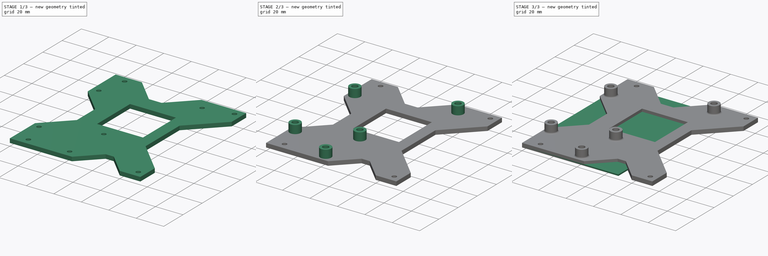
[diagram: build sequence overview — one tinted view per stage of 3, left to right]
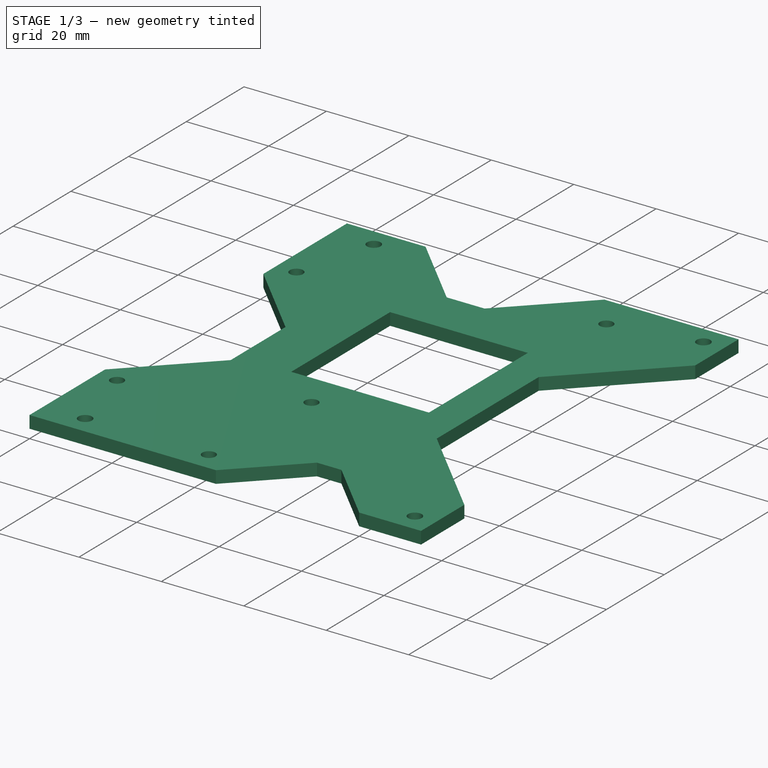
[diagram: stage 1 of 3 — iso view after this stage's code; geometry added in this stage tinted green]
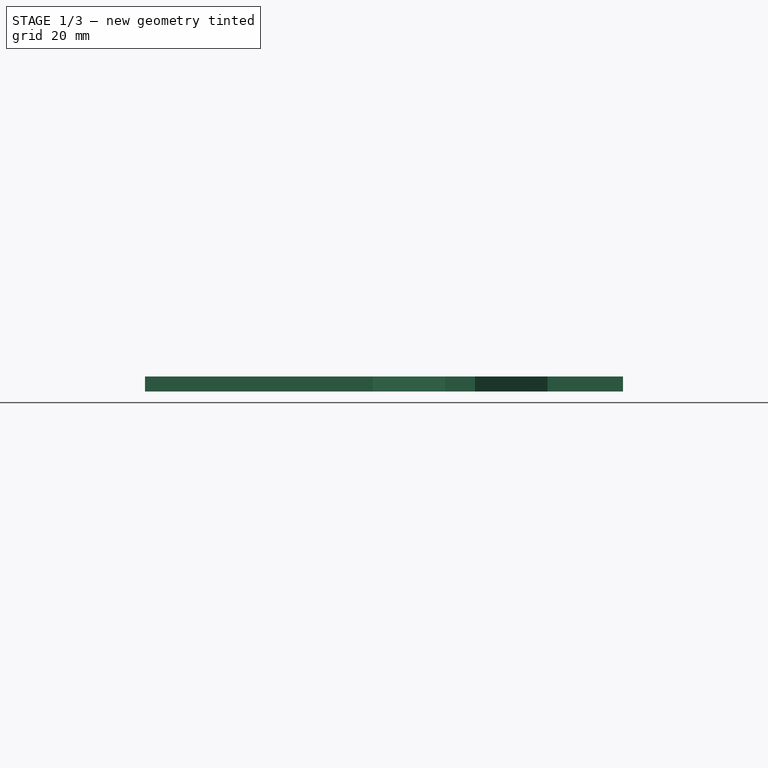
[diagram: stage 1 of 3 — front view after this stage's code; geometry added in this stage tinted green]
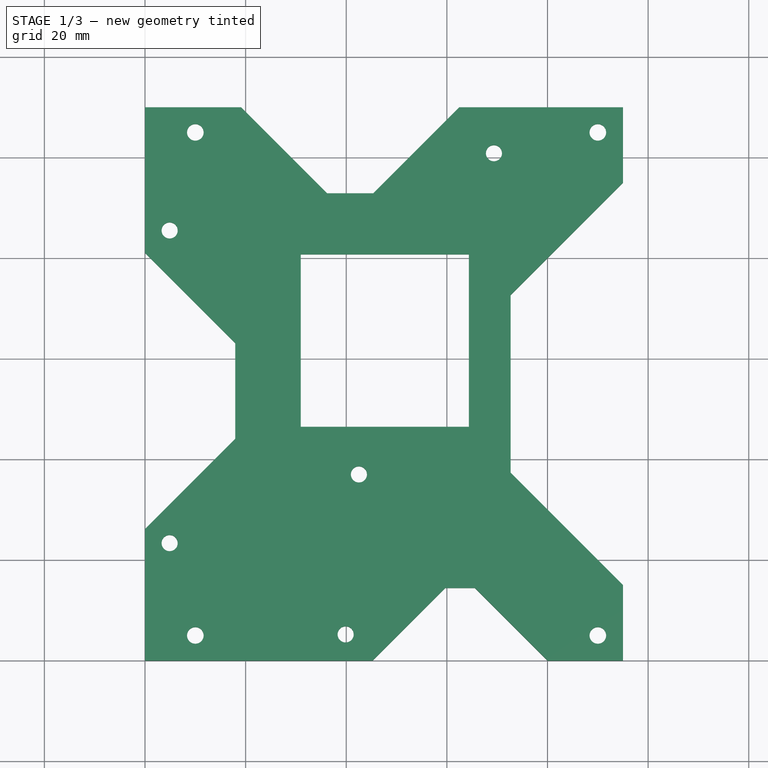
[diagram: stage 1 of 3 — top view after this stage's code; geometry added in this stage tinted green]
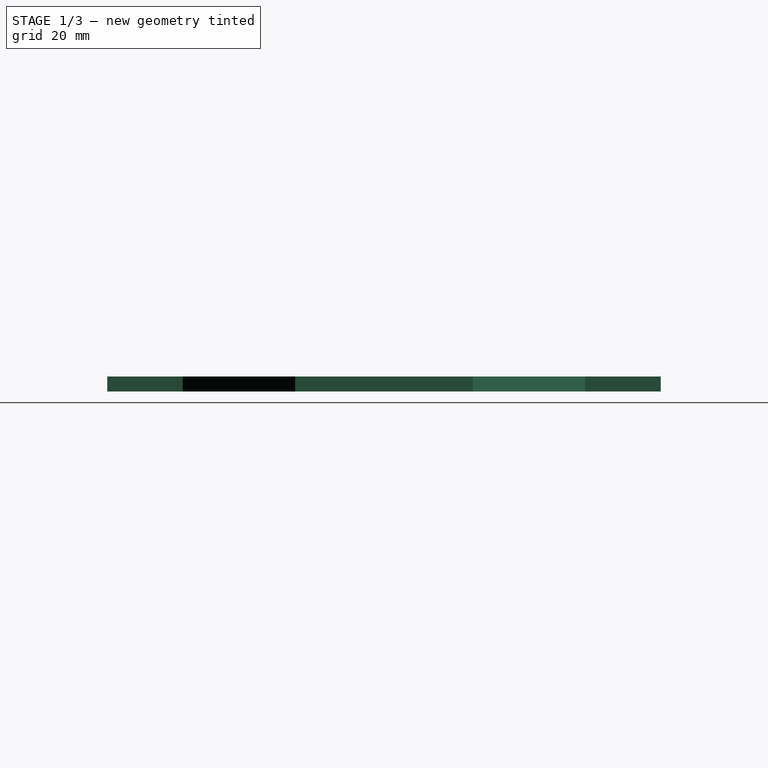
[diagram: stage 1 of 3 — right view after this stage's code; geometry added in this stage tinted green]
FCSTD DOCUMENT  (FreeCAD 0.19R24291 (Git))
Label: Mini E3 Mount
License: All rights reserved
LicenseURL: http://en.wikipedia.org/wiki/All_rights_reserved
objects: Sketcher::SketchObject×4, PartDesign::Pad×3, PartDesign::Body×2, PartDesign::Pocket×1, PartDesign::Fillet×1
note: 16 computed .brp shape members not serialized (recipe doc carries the construction recipe); baked Part::Feature solids carry a one-line shape summary decoded from their .brp

FEATURE [Sketcher::SketchObject] Sketch
  FullyConstrained = false
  MapMode = 2
  sketch-geometry (27):
    g0: LineSegment StartX=0 StartY=0 StartZ=0 EndX=45.2279 EndY=0 EndZ=0
    g1: LineSegment StartX=95 StartY=0 StartZ=0 EndX=95 EndY=15 EndZ=0
    g2: LineSegment StartX=95 StartY=110 StartZ=0 EndX=62.4625 EndY=110 EndZ=0
    g3: LineSegment StartX=0 StartY=110 StartZ=0 EndX=0 EndY=81.0263 EndZ=0
    g4: Circle CenterX=10 CenterY=105 CenterZ=0 NormalX=0 NormalY=0 NormalZ=1 AngleXU=0 Radius=1.65
    g5: Circle CenterX=90 CenterY=105 CenterZ=0 NormalX=0 NormalY=0 NormalZ=1 AngleXU=0 Radius=1.65
    g6: LineSegment StartX=10 StartY=105 StartZ=0 EndX=90 EndY=105 EndZ=0
    g7: Circle CenterX=10 CenterY=5 CenterZ=0 NormalX=0 NormalY=0 NormalZ=1 AngleXU=0 Radius=1.65
    g8: LineSegment StartX=10 StartY=105 StartZ=0 EndX=10 EndY=5 EndZ=0
    g9: Circle CenterX=90 CenterY=5 CenterZ=0 NormalX=0 NormalY=0 NormalZ=1 AngleXU=0 Radius=1.65
    g10: LineSegment StartX=10 StartY=5 StartZ=0 EndX=90 EndY=5 EndZ=0
    g11: LineSegment StartX=0 StartY=81.0263 StartZ=0 EndX=17.9327 EndY=63.0936 EndZ=0
    g12: LineSegment StartX=17.9327 StartY=63.0936 StartZ=0 EndX=17.9327 EndY=44.0976 EndZ=0
    g13: LineSegment StartX=17.9327 StartY=44.0976 StartZ=0 EndX=0 EndY=26.1649 EndZ=0
    g14: LineSegment StartX=19.0693 StartY=110 StartZ=0 EndX=36.1766 EndY=92.8927 EndZ=0
    g15: LineSegment StartX=36.1766 StartY=92.8927 StartZ=0 EndX=45.3553 EndY=92.8927 EndZ=0
    g16: LineSegment StartX=45.3553 StartY=92.8927 StartZ=0 EndX=62.4625 EndY=110 EndZ=0
    g17: LineSegment StartX=45.2279 StartY=0 StartZ=0 EndX=59.6457 EndY=14.4178 EndZ=0
    g18: LineSegment StartX=59.6457 StartY=14.4178 StartZ=0 EndX=65.5822 EndY=14.4178 EndZ=0
    g19: LineSegment StartX=65.5822 StartY=14.4178 StartZ=0 EndX=80 EndY=0 EndZ=0
    g20: LineSegment StartX=95 StartY=15 StartZ=0 EndX=72.6613 EndY=37.3387 EndZ=0
    g21: LineSegment StartX=72.6613 StartY=37.3387 StartZ=0 EndX=72.6613 EndY=72.6613 EndZ=0
    g22: LineSegment StartX=72.6613 StartY=72.6613 StartZ=0 EndX=95 EndY=95 EndZ=0
    g23: LineSegment StartX=19.0693 StartY=110 StartZ=0 EndX=0 EndY=110 EndZ=0
    g24: LineSegment StartX=95 StartY=95 StartZ=0 EndX=95 EndY=110 EndZ=0
    g25: LineSegment StartX=80 StartY=0 StartZ=0 EndX=95 EndY=0 EndZ=0
    g26: LineSegment StartX=0 StartY=26.1649 StartZ=0 EndX=0 EndY=0 EndZ=0
  constraints (64):
    c: Coincident(g25,g1)
    c: Coincident(g24,g2)
    c: Coincident(g23,g3)
    c: Coincident(g26,g0)
    c: Horizontal(g0)
    c: Horizontal(g2)
    c: Vertical(g1)
    c: Vertical(g3)
    c: Coincident(g0,g-1)
    c: DistanceX(g0,g25) = 95
    c: DistanceY(g26,g3) = 110
    c: Radius(g4) = 1.65
    c: Radius(g5) = 1.65
    c: Coincident(g4,g6)
    c: Coincident(g5,g6)
    c: Distance(g6) = 80
    c: Angle(g6) = 0
    c: Radius(g7) = 1.65
    c: Coincident(g4,g8)
    c: Coincident(g7,g8)
    c: Distance(g8) = 100
    c: Perpendicular(g8,g6)
    c: Radius(g9) = 1.65
    c: Coincident(g7,g10)
    c: Coincident(g9,g10)
    c: Equal(g6,g10)
    c: Parallel(g10,g6)
    c: DistanceY(g0,g7) = 5
    c: DistanceX(g0,g7) = 10
    c: Coincident(g11,g12)
    c: Vertical(g12)
    c: Coincident(g12,g13)
    c: Coincident(g14,g15)
    c: Horizontal(g15)
    c: Coincident(g15,g16)
    c: Coincident(g17,g18)
    c: Horizontal(g18)
    c: Coincident(g18,g19)
    c: Coincident(g20,g21)
    c: Vertical(g21)
    c: Coincident(g21,g22)
    c: Angle(g15,g14) = 2.35619
    c: Angle(g16,g15) = 2.35619
    c: Angle(g21,g22) = 2.35619
    c: Angle(g20,g21) = 2.35619
    c: Angle(g17,g18) = 2.35619
    c: Angle(g18,g19) = 2.35619
    c: Angle(g11,g12) = 2.35619
    c: Angle(g12,g13) = 2.35619
    c: DistanceX(g19,g25) = 15
    c: DistanceY(g25,g20) = 15
    c: DistanceY(g22,g24) = 15
    c: Coincident(g2,g16)
    c: Coincident(g23,g14)
    c: Tangent(g2,g23)
    c: Coincident(g1,g20)
    c: Coincident(g24,g22)
    c: Tangent(g1,g24)
    c: Coincident(g0,g17)
    c: Coincident(g25,g19)
    c: Tangent(g0,g25)
    c: Coincident(g3,g11)
    c: Coincident(g26,g13)
    c: Tangent(g3,g26)
FEATURE [Sketcher::SketchObject] Sketch001
  FullyConstrained = true
  MapMode = 5
  Support = -> [XY_Plane001]
  sketch-geometry (9):
    g0: LineSegment StartX=0 StartY=0 StartZ=0 EndX=70.25 EndY=0 EndZ=0
    g1: LineSegment StartX=70.25 StartY=0 StartZ=0 EndX=70.25 EndY=103.75 EndZ=0
    g2: LineSegment StartX=70.25 StartY=103.75 StartZ=0 EndX=0 EndY=103.75 EndZ=0
    g3: LineSegment StartX=0 StartY=103.75 StartZ=0 EndX=0 EndY=0 EndZ=0
    g4: Circle CenterX=2.895 CenterY=85.5 CenterZ=0 NormalX=0 NormalY=0 NormalZ=1 AngleXU=0 Radius=1.6
    g5: Circle CenterX=2.895 CenterY=23.35 CenterZ=0 NormalX=0 NormalY=0 NormalZ=1 AngleXU=0 Radius=1.6
    g6: Circle CenterX=40.515 CenterY=37.005 CenterZ=0 NormalX=0 NormalY=0 NormalZ=1 AngleXU=0 Radius=1.6
    g7: Circle CenterX=37.875 CenterY=5.205 CenterZ=0 NormalX=0 NormalY=0 NormalZ=1 AngleXU=0 Radius=1.6
    g8: Circle CenterX=67.355 CenterY=100.855 CenterZ=0 NormalX=0 NormalY=0 NormalZ=1 AngleXU=0 Radius=1.6
  constraints (27):
    c: Coincident(g0,g1)
    c: Coincident(g1,g2)
    c: Coincident(g2,g3)
    c: Coincident(g3,g0)
    c: Horizontal(g0)
    c: Horizontal(g2)
    c: Vertical(g1)
    c: Vertical(g3)
    c: Coincident(g0,g-1)
    c: DistanceY(g3,g3) = 103.75
    c: DistanceX(g0,g0) = 70.25
    c: Radius(g4) = 1.6
    c: Equal(g4,g5) = 1.6
    c: Equal(g4,g6) = 1.6
    c: Equal(g4,g7) = 1.6
    c: Equal(g4,g8) = 1.6
    c: DistanceY(g5,g4) = 62.15
    c: Vertical(g5,g4)
    c: DistanceX(g5,g6) = 37.62
    c: DistanceX(g5,g7) = 34.98
    c: DistanceX(g5,g8) = 64.46
    c: DistanceX(g8,g1) = 2.895
    c: DistanceY(g8,g1) = 2.895
    c: DistanceY(g7,g8) = 95.65
    c: DistanceY(g0,g5) = 23.35
    c: DistanceY(g4,g2) = 18.25
    c: DistanceY(g7,g6) = 31.8
FEATURE [PartDesign::Pad] Pad
  Direction = (1,1,1)
  Length = 3
  Length2 = 100
  Profile = -> Sketch
  Type = 0
FEATURE [Sketcher::SketchObject] Sketch004
  AttachmentOffset = pos=(2,0,0) rot=(0,0,1;0rad)
  FullyConstrained = false
  MapMode = 5
  Placement = pos=(2,0,3) rot=(0,0,1;0rad)
  Support = -> [Pad]
  sketch-geometry (9):
    g0: Circle CenterX=2.895 CenterY=85.5 CenterZ=0 NormalX=0 NormalY=0 NormalZ=1 AngleXU=0 Radius=1.6
    g1: Circle CenterX=2.895 CenterY=23.35 CenterZ=0 NormalX=0 NormalY=0 NormalZ=1 AngleXU=0 Radius=1.6
    g2: Circle CenterX=40.515 CenterY=37.005 CenterZ=0 NormalX=0 NormalY=0 NormalZ=1 AngleXU=0 Radius=1.6
    g3: Circle CenterX=37.875 CenterY=5.205 CenterZ=0 NormalX=0 NormalY=0 NormalZ=1 AngleXU=0 Radius=1.6
    g4: Circle CenterX=67.355 CenterY=100.855 CenterZ=0 NormalX=0 NormalY=0 NormalZ=1 AngleXU=0 Radius=1.6
    g5: LineSegment StartX=28.9523 StartY=80.7494 StartZ=0 EndX=62.3705 EndY=80.7494 EndZ=0
    g6: LineSegment StartX=62.3705 StartY=80.7494 StartZ=0 EndX=62.3705 EndY=46.4851 EndZ=0
    g7: LineSegment StartX=62.3705 StartY=46.4851 StartZ=0 EndX=28.9523 EndY=46.4851 EndZ=0
    g8: LineSegment StartX=28.9523 StartY=46.4851 StartZ=0 EndX=28.9523 EndY=80.7494 EndZ=0
  constraints (20):
    c: Radius(g0) = 1.6
    c: Equal(g0,g1) = 1.6
    c: Equal(g0,g2) = 1.6
    c: Equal(g0,g3) = 1.6
    c: Equal(g0,g4) = 1.6
    c: DistanceY(g1,g0) = 62.15
    c: Vertical(g1,g0)
    c: DistanceX(g1,g2) = 37.62
    c: DistanceX(g1,g3) = 34.98
    c: DistanceX(g1,g4) = 64.46
    c: DistanceY(g3,g4) = 95.65
    c: DistanceY(g3,g2) = 31.8
    c: Coincident(g5,g6)
    c: Coincident(g6,g7)
    c: Coincident(g7,g8)
    c: Coincident(g8,g5)
    c: Horizontal(g5)
    c: Horizontal(g7)
    c: Vertical(g6)
    c: Vertical(g8)
FEATURE [PartDesign::Pocket] Pocket
  BaseFeature = -> Pad
  Length = 5
  Length2 = 100
  Profile = -> Sketch004
  Type = 0
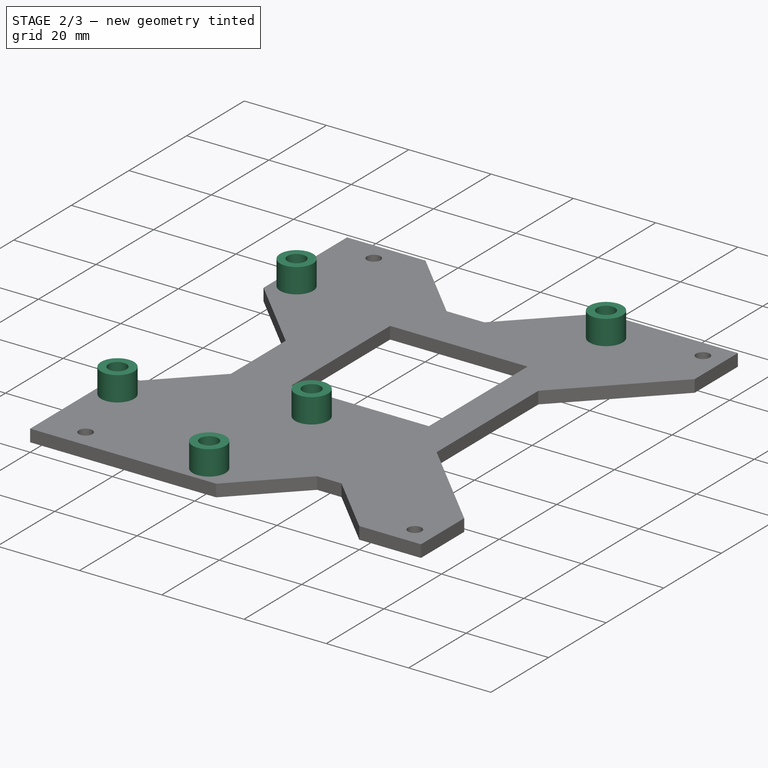
[diagram: stage 2 of 3 — iso view after this stage's code; geometry added in this stage tinted green]
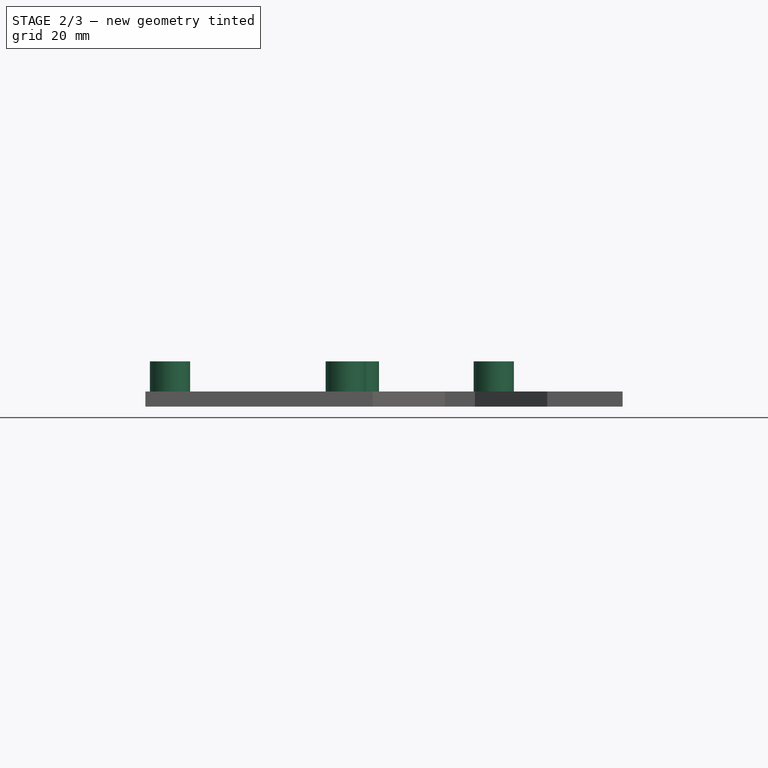
[diagram: stage 2 of 3 — front view after this stage's code; geometry added in this stage tinted green]
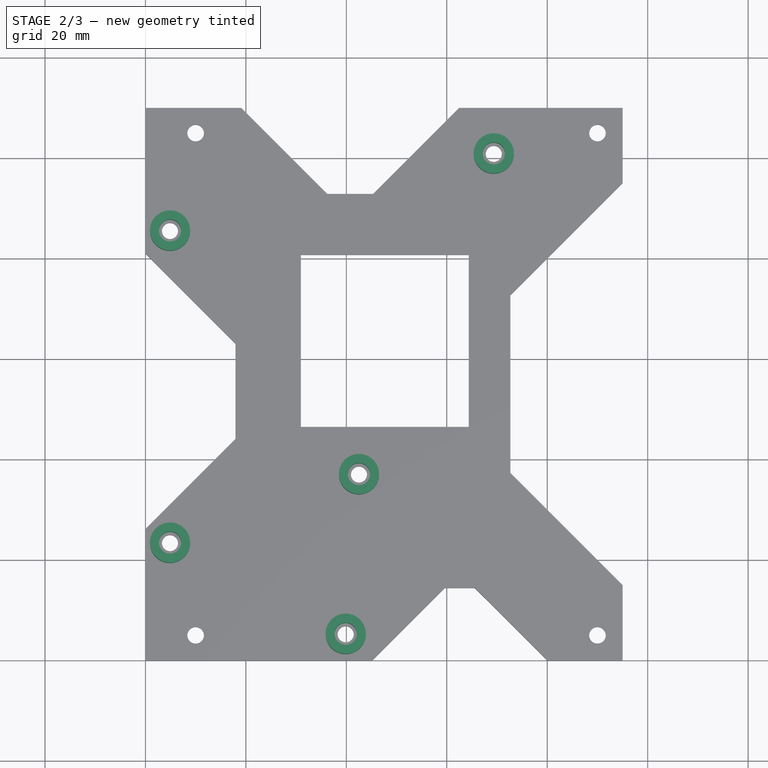
[diagram: stage 2 of 3 — top view after this stage's code; geometry added in this stage tinted green]
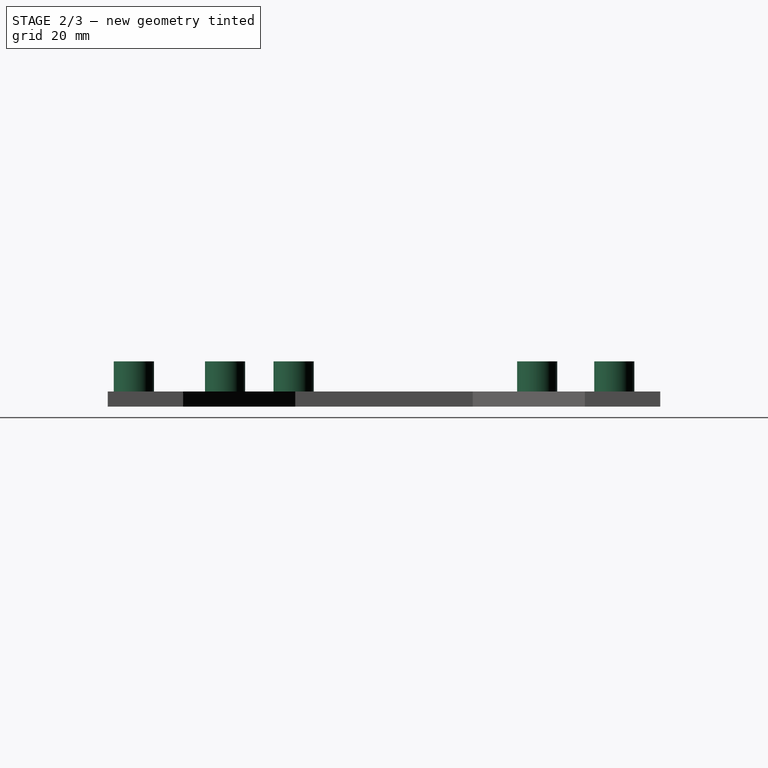
[diagram: stage 2 of 3 — right view after this stage's code; geometry added in this stage tinted green]
FEATURE [Sketcher::SketchObject] Sketch005
  ExternalGeometry = -> [Pocket]
  FullyConstrained = true
  MapMode = 5
  Placement = pos=(0,0,3) rot=(0,0,1;0rad)
  Support = -> [Pocket]
  sketch-geometry (10):
    g0: Circle CenterX=4.895 CenterY=85.5 CenterZ=0 NormalX=0 NormalY=0 NormalZ=1 AngleXU=0 Radius=2.2
    g1: Circle CenterX=4.895 CenterY=85.5 CenterZ=0 NormalX=0 NormalY=0 NormalZ=1 AngleXU=0 Radius=4
    g2: Circle CenterX=69.355 CenterY=100.855 CenterZ=0 NormalX=0 NormalY=0 NormalZ=1 AngleXU=0 Radius=2.2
    g3: Circle CenterX=69.355 CenterY=100.855 CenterZ=0 NormalX=0 NormalY=0 NormalZ=1 AngleXU=0 Radius=4
    g4: Circle CenterX=42.515 CenterY=37.005 CenterZ=0 NormalX=0 NormalY=0 NormalZ=1 AngleXU=0 Radius=2.2
    g5: Circle CenterX=42.515 CenterY=37.005 CenterZ=0 NormalX=0 NormalY=0 NormalZ=1 AngleXU=0 Radius=4
    g6: Circle CenterX=4.895 CenterY=23.35 CenterZ=0 NormalX=0 NormalY=0 NormalZ=1 AngleXU=0 Radius=2.2
    g7: Circle CenterX=4.895 CenterY=23.35 CenterZ=0 NormalX=0 NormalY=0 NormalZ=1 AngleXU=0 Radius=4
    g8: Circle CenterX=39.875 CenterY=5.205 CenterZ=0 NormalX=0 NormalY=0 NormalZ=1 AngleXU=0 Radius=2.2
    g9: Circle CenterX=39.875 CenterY=5.205 CenterZ=0 NormalX=0 NormalY=0 NormalZ=1 AngleXU=0 Radius=4
  constraints (20):
    c: Radius(g0) = 2.2
    c: Coincident(g1,g0)
    c: Radius(g1) = 4
    c: Equal(g0,g2) = 2.2
    c: Coincident(g3,g2)
    c: Equal(g1,g3) = 3
    c: Coincident(g3,g-5)
    c: Equal(g0,g4) = 2.2
    c: Coincident(g5,g4)
    c: Equal(g1,g5) = 3
    c: Coincident(g5,g-6)
    c: Equal(g0,g6) = 2.2
    c: Coincident(g7,g6)
    c: Equal(g1,g7) = 3
    c: Coincident(g7,g-3)
    c: Equal(g0,g8) = 2.2
    c: Coincident(g9,g8)
    c: Equal(g1,g9) = 3
    c: Coincident(g9,g-7)
    c: Coincident(g0,g-8)
FEATURE [PartDesign::Pad] Pad001
  BaseFeature = -> Pocket
  Direction = (1,1,1)
  Length = 6
  Length2 = 100
  Profile = -> Sketch005
  Type = 0
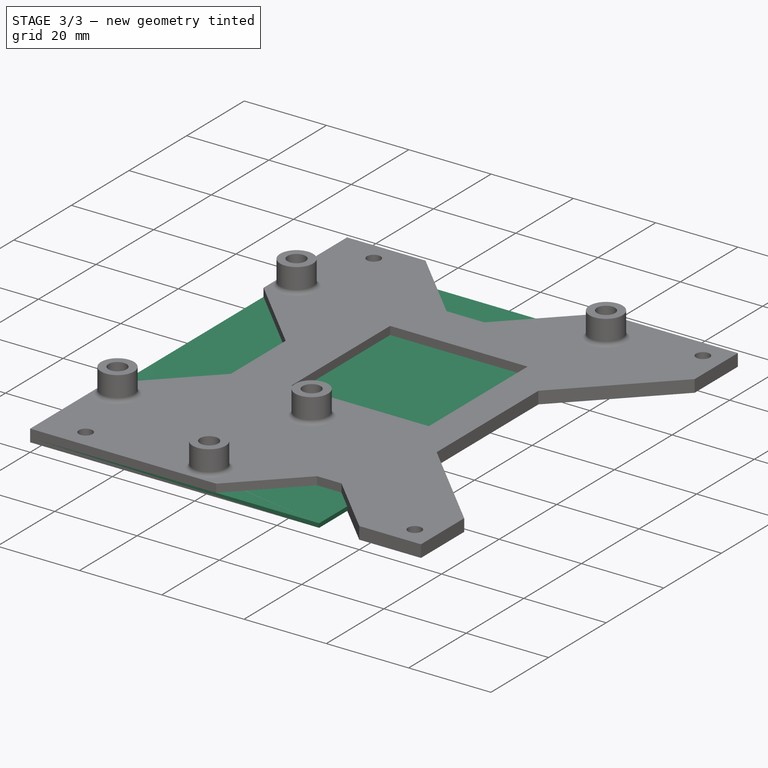
[diagram: stage 3 of 3 — iso view after this stage's code; geometry added in this stage tinted green]
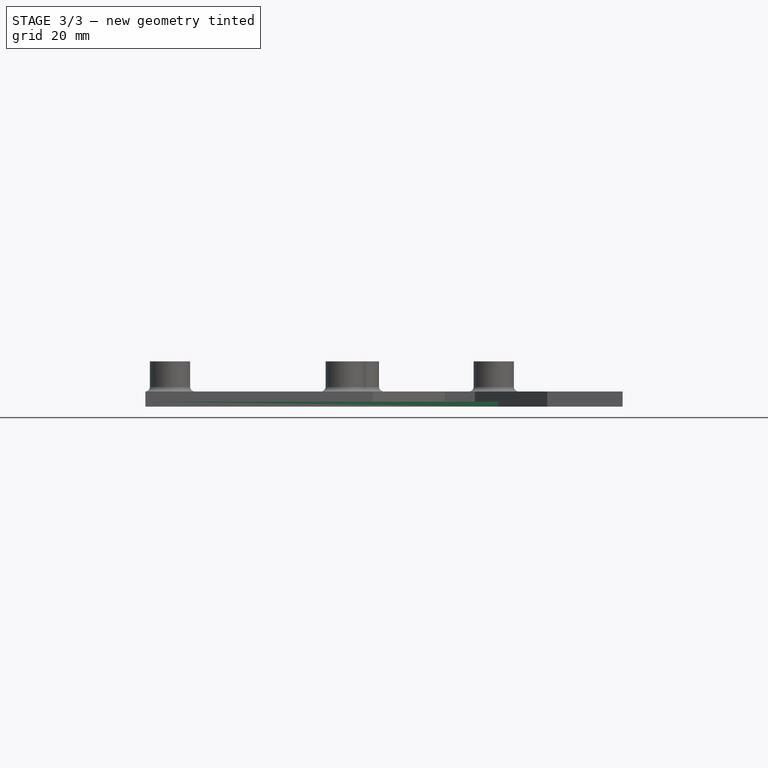
[diagram: stage 3 of 3 — front view after this stage's code; geometry added in this stage tinted green]
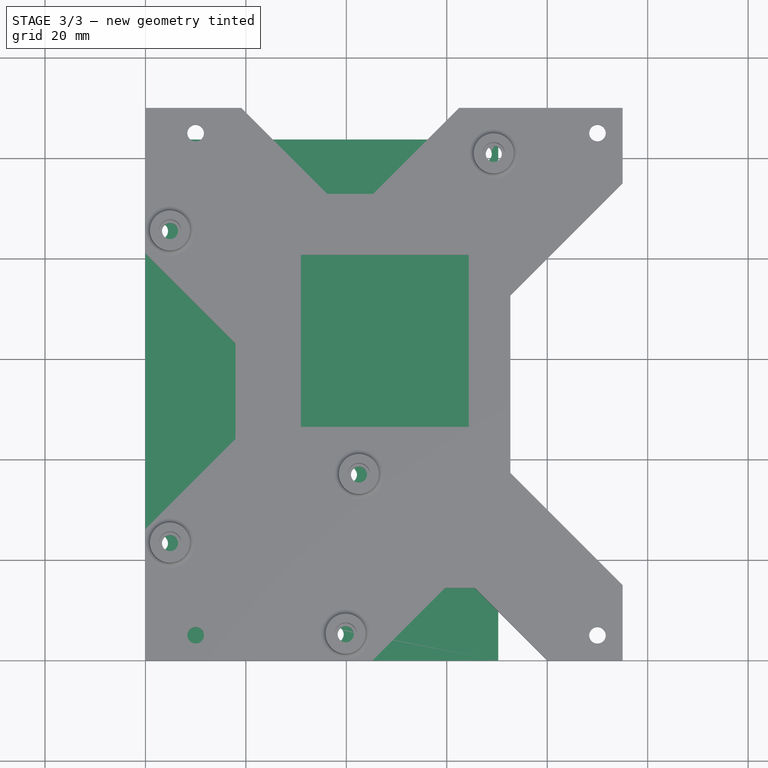
[diagram: stage 3 of 3 — top view after this stage's code; geometry added in this stage tinted green]
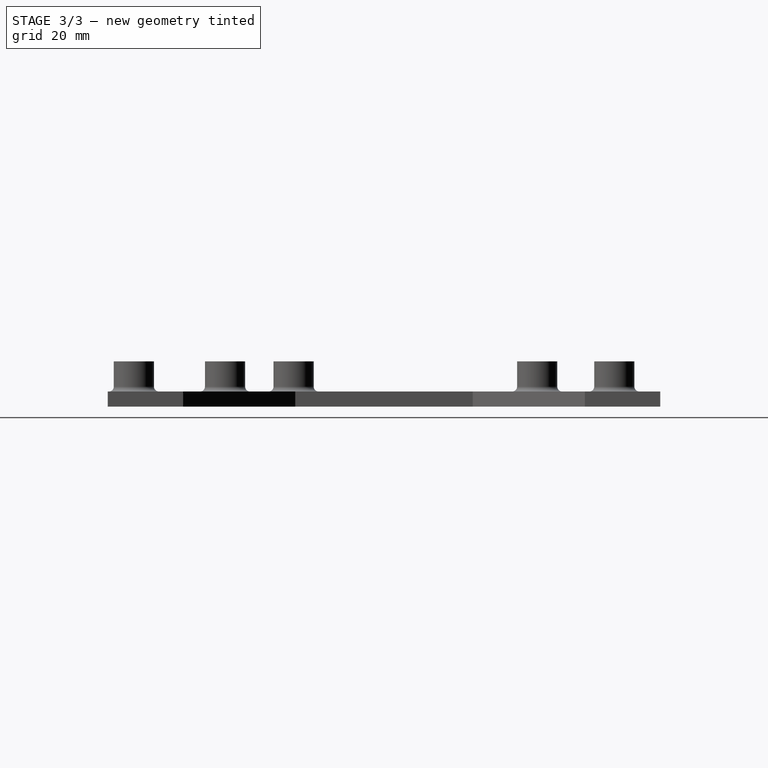
[diagram: stage 3 of 3 — right view after this stage's code; geometry added in this stage tinted green]
FEATURE [PartDesign::Pad] Pad002
  Direction = (1,1,1)
  Length = 1
  Length2 = 100
  Profile = -> Sketch001
  Type = 0
FEATURE [PartDesign::Body] Body001
  Group = -> [Sketch001,Pad002]
  Origin = -> Origin001
  Placement = pos=(2,0,9) rot=(0,0,1;0rad)
  Tip = -> Pad002
FEATURE [PartDesign::Fillet] Fillet
  Base = -> Pad001 [Edge63,Edge59,Edge61,Edge60,Edge69]
  BaseFeature = -> Pad001
  Radius = 1
  SupportTransform = false
FEATURE [PartDesign::Body] Body
  Group = -> [Sketch,Pad,Sketch004,Pocket,Sketch005,Pad001,Fillet]
  Origin = -> Origin
  Tip = -> Fillet
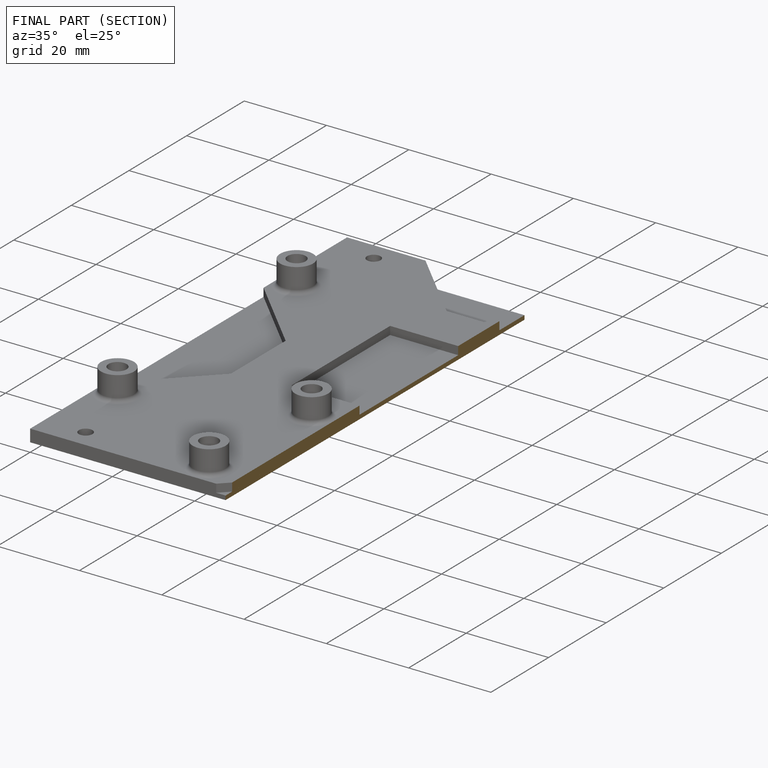
[diagram: finished part — half-section view (interior)]
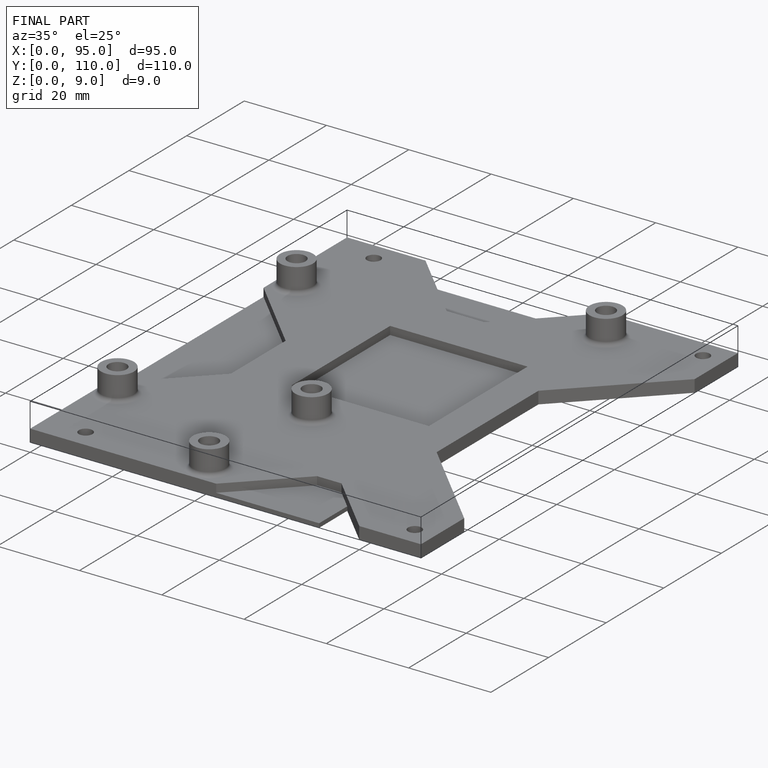
[diagram: finished part — iso view with bounding-box wireframe]
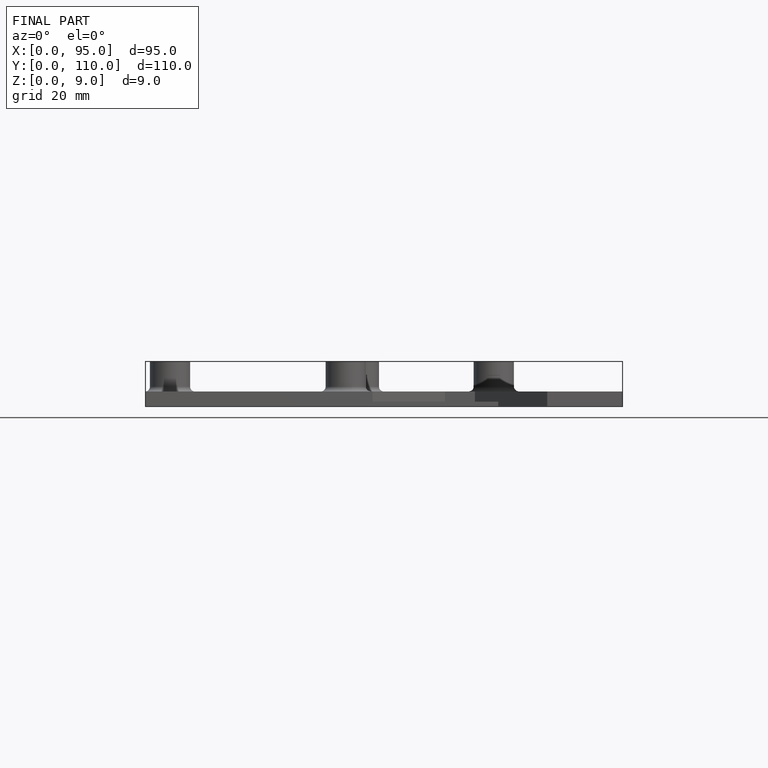
[diagram: finished part — front view with bounding-box wireframe]
